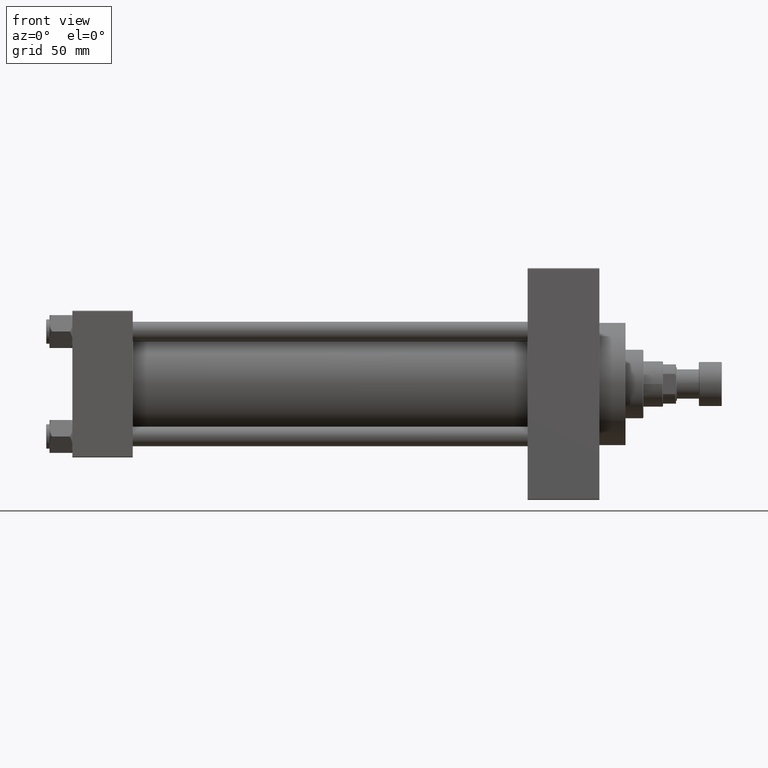
[diagram: clean part render]
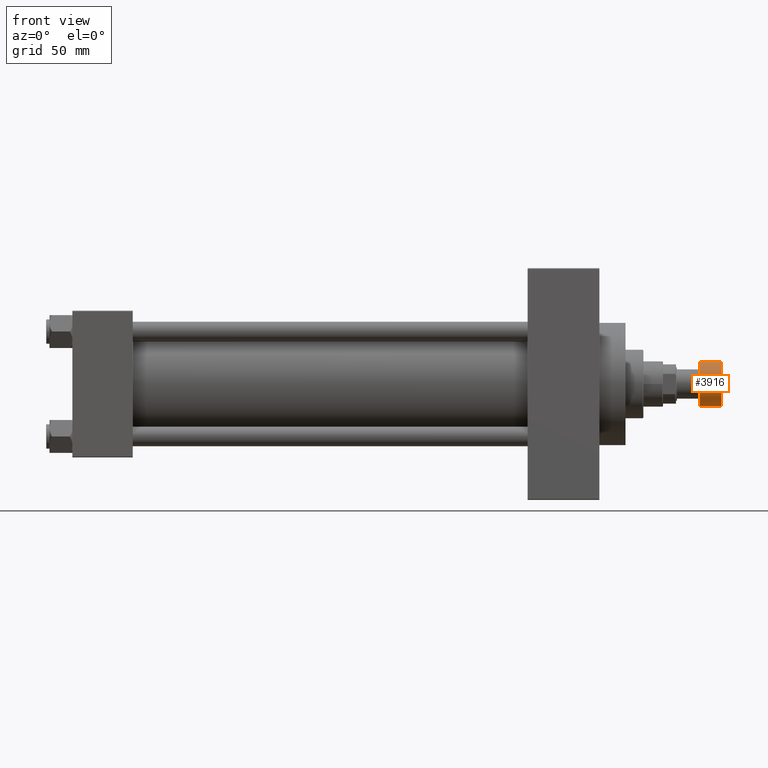
[diagram: same view with one face highlighted and labeled with its STEP entity id]
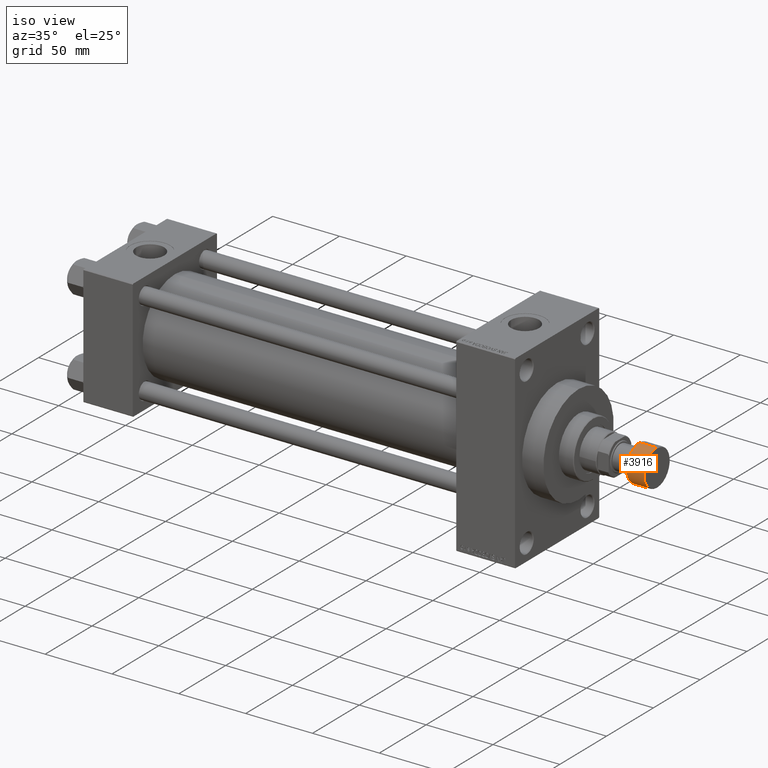
[diagram: same view with one face highlighted and labeled with its STEP entity id]
A machine part, front view. The second image highlights one B-rep face of the part: STEP entity #3916.
A second angle (iso view) of the same face is appended — the face is thin or edge-on in the first view.
In plain terms, the highlighted cylindrical surface (edge-blend (fillet) strip) has radius 13.5 mm, axis along (1, 0, 0).
Its self-contained STEP definition (entity closure, byte-faithful):
#970 = CARTESIAN_POINT ( 'NONE',  ( 0.000000000000000000, 0.000000000000000000, -0.5000000000000004441 ) ) ;
#1267 = DIRECTION ( 'NONE',  ( 0.000000000000000000, 0.000000000000000000, 1.000000000000000000 ) ) ;
#2293 = CARTESIAN_POINT ( 'NONE',  ( 13.50000000000000000, 0.000000000000000000, -13.50000000000000000 ) ) ;
#2851 = EDGE_LOOP ( 'NONE', ( #39271, #6982, #47697, #24251 ) ) ;
#3485 = VERTEX_POINT ( 'NONE', #41629 ) ;
#3916 = ADVANCED_FACE ( 'NONE', ( #7814 ), #45783, .T. ) ;
#4763 = EDGE_CURVE ( 'NONE', #14630, #3485, #40461, .T. ) ;
#5068 = CARTESIAN_POINT ( 'NONE',  ( -13.50000000000000000, 1.653273178848926867E-15, -14.00000000000000000 ) ) ;
#6982 = ORIENTED_EDGE ( 'NONE', *, *, #11026, .T. ) ;
#7668 = VERTEX_POINT ( 'NONE', #18089 ) ;
#7814 = FACE_OUTER_BOUND ( 'NONE', #2851, .T. ) ;
#9625 = AXIS2_PLACEMENT_3D ( 'NONE', #970, #36154, #32138 ) ;
#11026 = EDGE_CURVE ( 'NONE', #16394, #14630, #25939, .T. ) ;
#12105 = DIRECTION ( 'NONE',  ( 1.000000000000000000, 0.000000000000000000, 0.000000000000000000 ) ) ;
#14320 = CARTESIAN_POINT ( 'NONE',  ( 13.50000000000000000, 0.000000000000000000, -14.00000000000000000 ) ) ;
#14630 = VERTEX_POINT ( 'NONE', #2293 ) ;
#16394 = VERTEX_POINT ( 'NONE', #30344 ) ;
#18089 = CARTESIAN_POINT ( 'NONE',  ( -13.50000000000000000, 1.653273178848926867E-15, -0.5000000000000004441 ) ) ;
#18735 = AXIS2_PLACEMENT_3D ( 'NONE', #19406, #31199, #12105 ) ;
#19406 = CARTESIAN_POINT ( 'NONE',  ( 0.000000000000000000, 0.000000000000000000, -13.50000000000000000 ) ) ;
#19640 = DIRECTION ( 'NONE',  ( 0.000000000000000000, 0.000000000000000000, 1.000000000000000000 ) ) ;
#22673 = CARTESIAN_POINT ( 'NONE',  ( 0.000000000000000000, 0.000000000000000000, -14.00000000000000000 ) ) ;
#24251 = ORIENTED_EDGE ( 'NONE', *, *, #49401, .T. ) ;
#25837 = VECTOR ( 'NONE', #25876, 1000.000000000000000 ) ;
#25876 = DIRECTION ( 'NONE',  ( 0.000000000000000000, 0.000000000000000000, 1.000000000000000000 ) ) ;
#25939 = CIRCLE ( 'NONE', #18735, 13.50000000000000000 ) ;
#29691 = CIRCLE ( 'NONE', #9625, 13.50000000000000000 ) ;
#29820 = AXIS2_PLACEMENT_3D ( 'NONE', #22673, #19640, #45532 ) ;
#30139 = EDGE_CURVE ( 'NONE', #16394, #7668, #32204, .T. ) ;
#30344 = CARTESIAN_POINT ( 'NONE',  ( -13.50000000000000000, 1.653273178848926867E-15, -13.50000000000000000 ) ) ;
#31199 = DIRECTION ( 'NONE',  ( 0.000000000000000000, 0.000000000000000000, 1.000000000000000000 ) ) ;
#32138 = DIRECTION ( 'NONE',  ( 1.000000000000000000, 0.000000000000000000, 0.000000000000000000 ) ) ;
#32204 = LINE ( 'NONE', #5068, #45963 ) ;
#36154 = DIRECTION ( 'NONE',  ( -0.000000000000000000, -0.000000000000000000, -1.000000000000000000 ) ) ;
#39271 = ORIENTED_EDGE ( 'NONE', *, *, #30139, .F. ) ;
#40461 = LINE ( 'NONE', #14320, #25837 ) ;
#41629 = CARTESIAN_POINT ( 'NONE',  ( 13.50000000000000000, 0.000000000000000000, -0.5000000000000004441 ) ) ;
#45532 = DIRECTION ( 'NONE',  ( 1.000000000000000000, 0.000000000000000000, 0.000000000000000000 ) ) ;
#45783 = CYLINDRICAL_SURFACE ( 'NONE', #29820, 13.50000000000000000 ) ;
#45963 = VECTOR ( 'NONE', #1267, 1000.000000000000000 ) ;
#47697 = ORIENTED_EDGE ( 'NONE', *, *, #4763, .T. ) ;
#49401 = EDGE_CURVE ( 'NONE', #3485, #7668, #29691, .T. ) ;